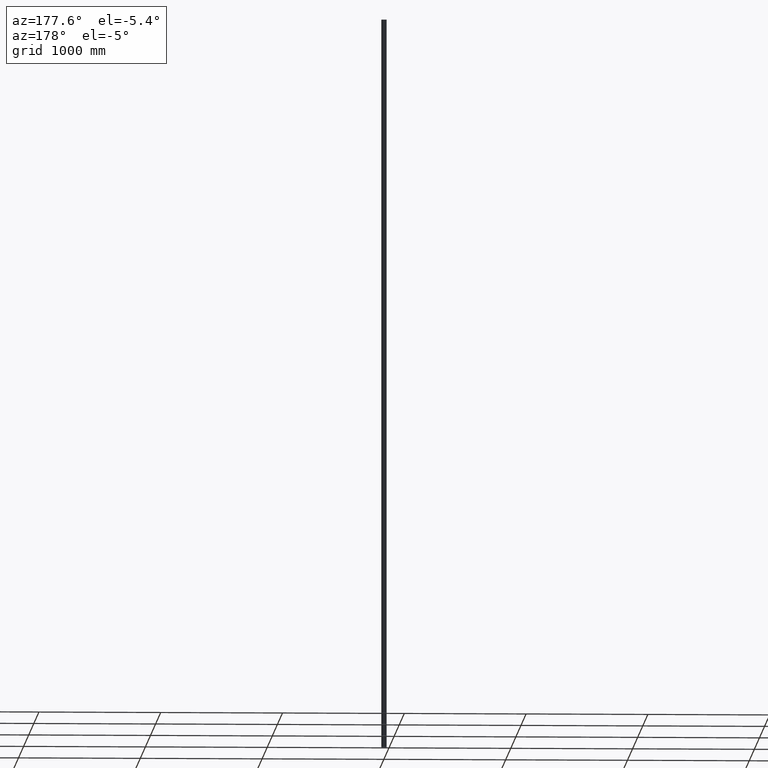
[diagram: clean part render]
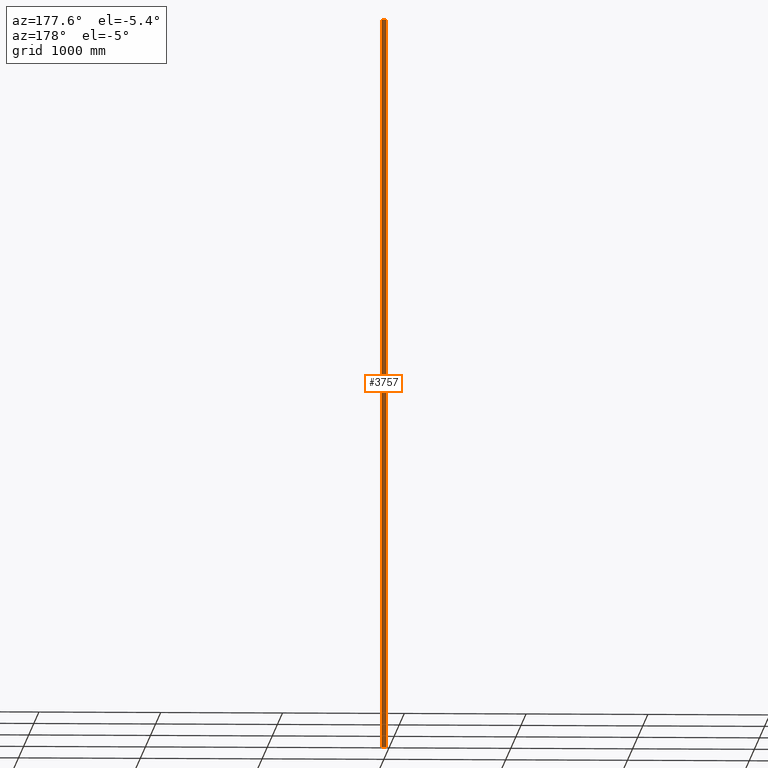
[diagram: same view with one face highlighted and labeled with its STEP entity id]
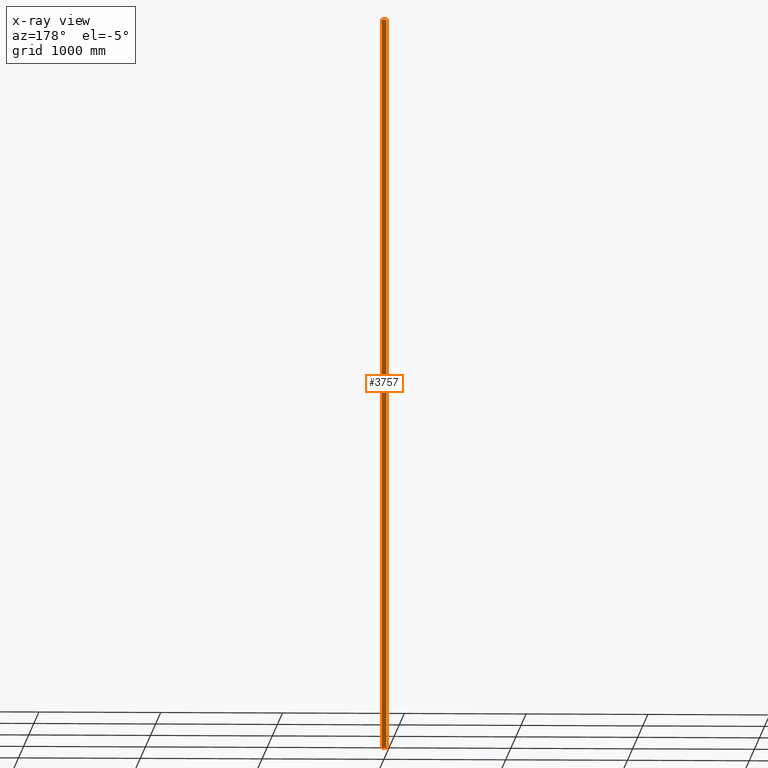
[diagram: x-ray of the same camera — body ghosted, the highlighted face saturated]
A machine part, auxiliary view. The second image highlights one B-rep face of the part: STEP entity #3757.
The next image is the same camera in x-ray: the body ghosted, the highlighted face saturated — about 0% of this face is hidden behind the body in this view.
In plain terms, the highlighted planar face has unit normal (-0, -1, 0).
Its self-contained STEP definition (entity closure, byte-faithful):
#250 = CARTESIAN_POINT ( 'NONE',  ( 17.99999999999999645, 52.99999999999999289, 3000.000000000000000 ) ) ;
#596 = VERTEX_POINT ( 'NONE', #4980 ) ;
#721 = VERTEX_POINT ( 'NONE', #10469 ) ;
#881 = LINE ( 'NONE', #4334, #5772 ) ;
#2046 = EDGE_CURVE ( 'NONE', #11353, #721, #11486, .T. ) ;
#2124 = PLANE ( 'NONE',  #8586 ) ;
#2422 = CARTESIAN_POINT ( 'NONE',  ( -17.99999999999999645, 52.99999999999999289, 3000.000000000000000 ) ) ;
#2996 = EDGE_CURVE ( 'NONE', #596, #721, #3326, .T. ) ;
#3138 = DIRECTION ( 'NONE',  ( -0.000000000000000000, -0.000000000000000000, -1.000000000000000000 ) ) ;
#3326 = LINE ( 'NONE', #2422, #6362 ) ;
#3413 = ORIENTED_EDGE ( 'NONE', *, *, #8996, .F. ) ;
#3699 = CARTESIAN_POINT ( 'NONE',  ( 0.000000000000000000, 53.00000000000000000, -3000.000000000000000 ) ) ;
#3757 = ADVANCED_FACE ( 'NONE', ( #9751 ), #2124, .F. ) ;
#4152 = EDGE_LOOP ( 'NONE', ( #8742, #10617, #3413, #9675 ) ) ;
#4214 = LINE ( 'NONE', #250, #12667 ) ;
#4269 = EDGE_CURVE ( 'NONE', #6626, #11353, #4214, .T. ) ;
#4334 = CARTESIAN_POINT ( 'NONE',  ( 0.000000000000000000, 53.00000000000000000, 3000.000000000000000 ) ) ;
#4980 = CARTESIAN_POINT ( 'NONE',  ( -17.99999999999999645, 52.99999999999999289, 3000.000000000000000 ) ) ;
#5186 = VECTOR ( 'NONE', #7558, 1000.000000000000000 ) ;
#5772 = VECTOR ( 'NONE', #6427, 1000.000000000000000 ) ;
#6060 = CARTESIAN_POINT ( 'NONE',  ( 17.99999999999999645, 52.99999999999999289, 3000.000000000000000 ) ) ;
#6362 = VECTOR ( 'NONE', #9233, 1000.000000000000000 ) ;
#6427 = DIRECTION ( 'NONE',  ( -1.000000000000000000, 3.854941057726239083E-16, -0.000000000000000000 ) ) ;
#6626 = VERTEX_POINT ( 'NONE', #6060 ) ;
#6796 = CARTESIAN_POINT ( 'NONE',  ( 0.000000000000000000, 53.00000000000000000, 3000.000000000000000 ) ) ;
#6841 = DIRECTION ( 'NONE',  ( -3.854941057726239083E-16, -1.000000000000000000, 0.000000000000000000 ) ) ;
#7558 = DIRECTION ( 'NONE',  ( -1.000000000000000000, 3.854941057726239083E-16, -0.000000000000000000 ) ) ;
#8586 = AXIS2_PLACEMENT_3D ( 'NONE', #6796, #6841, #8771 ) ;
#8742 = ORIENTED_EDGE ( 'NONE', *, *, #2046, .T. ) ;
#8771 = DIRECTION ( 'NONE',  ( 1.000000000000000000, -3.854941057726239083E-16, 0.000000000000000000 ) ) ;
#8996 = EDGE_CURVE ( 'NONE', #6626, #596, #881, .T. ) ;
#9233 = DIRECTION ( 'NONE',  ( -0.000000000000000000, -0.000000000000000000, -1.000000000000000000 ) ) ;
#9675 = ORIENTED_EDGE ( 'NONE', *, *, #4269, .T. ) ;
#9751 = FACE_OUTER_BOUND ( 'NONE', #4152, .T. ) ;
#10378 = CARTESIAN_POINT ( 'NONE',  ( 17.99999999999999645, 52.99999999999999289, -3000.000000000000000 ) ) ;
#10469 = CARTESIAN_POINT ( 'NONE',  ( -17.99999999999999645, 52.99999999999999289, -3000.000000000000000 ) ) ;
#10617 = ORIENTED_EDGE ( 'NONE', *, *, #2996, .F. ) ;
#11353 = VERTEX_POINT ( 'NONE', #10378 ) ;
#11486 = LINE ( 'NONE', #3699, #5186 ) ;
#12667 = VECTOR ( 'NONE', #3138, 1000.000000000000000 ) ;